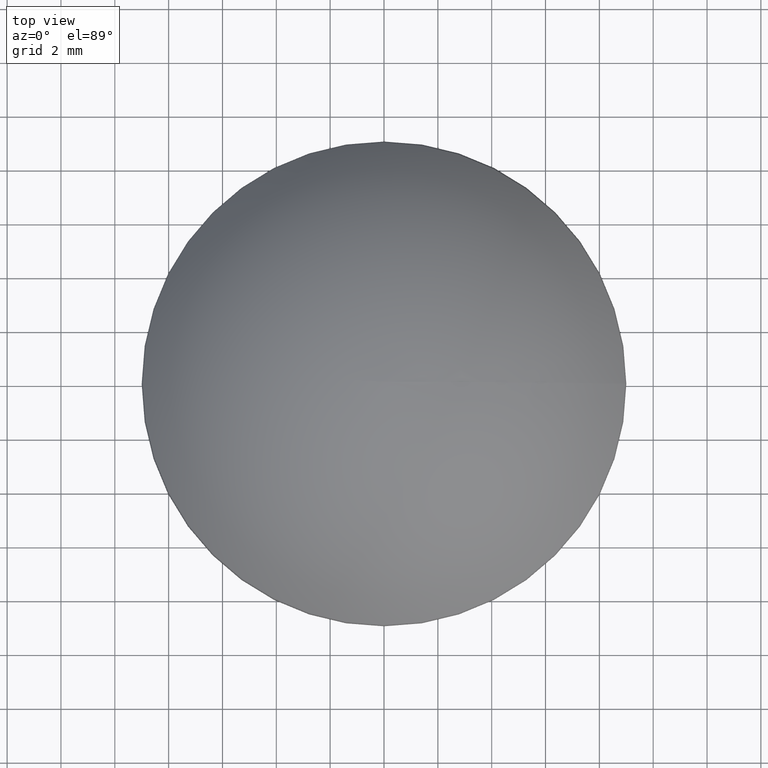
[diagram: clean part render]
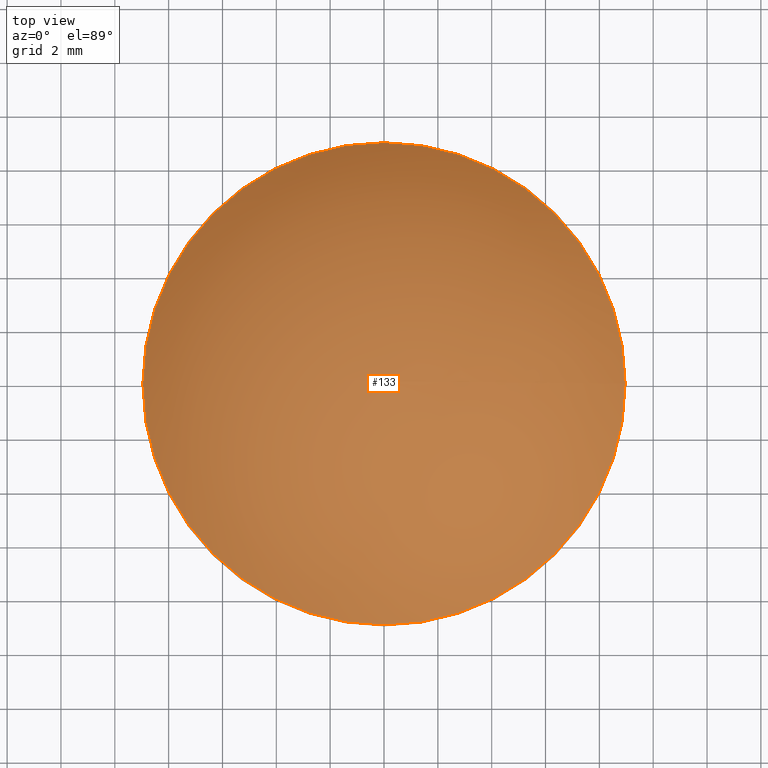
[diagram: same view with one face highlighted and labeled with its STEP entity id]
A machine part, top view. The second image highlights one B-rep face of the part: STEP entity #133.
In plain terms, the highlighted spherical surface has radius 11.5 mm.
Its self-contained STEP definition (entity closure, byte-faithful):
#16=SPHERICAL_SURFACE('',#156,11.5);
#40=FACE_OUTER_BOUND('',#59,.T.);
#59=EDGE_LOOP('',(#114));
#74=CIRCLE('',#153,8.95567978584934);
#85=VERTEX_POINT('',#232);
#96=EDGE_CURVE('',#85,#85,#74,.T.);
#114=ORIENTED_EDGE('',*,*,#96,.F.);
#133=ADVANCED_FACE('',(#40),#16,.T.);
#153=AXIS2_PLACEMENT_3D('',#233,#191,#192);
#156=AXIS2_PLACEMENT_3D('',#237,#197,#198);
#191=DIRECTION('center_axis',(0.,0.,-1.));
#192=DIRECTION('ref_axis',(1.,6.12323399573677E-17,0.));
#197=DIRECTION('center_axis',(6.12323399573677E-17,0.,1.));
#198=DIRECTION('ref_axis',(1.,0.,0.));
#232=CARTESIAN_POINT('',(-8.95567978584934,5.48377229196452E-16,7.21427748103229));
#233=CARTESIAN_POINT('Origin',(0.,0.,7.21427748103229));
#237=CARTESIAN_POINT('Origin',(0.,0.,0.));